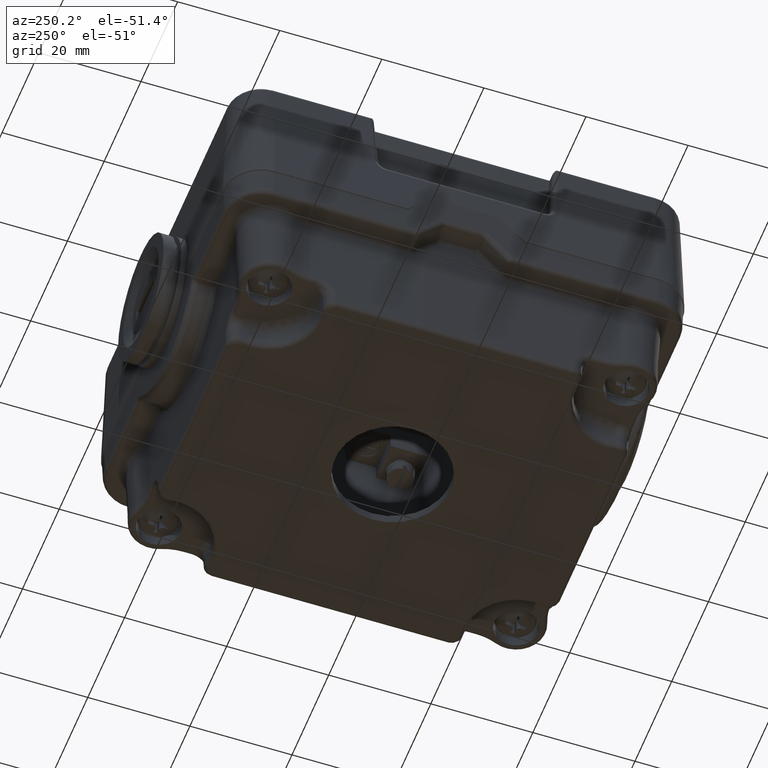
[diagram: clean part render]
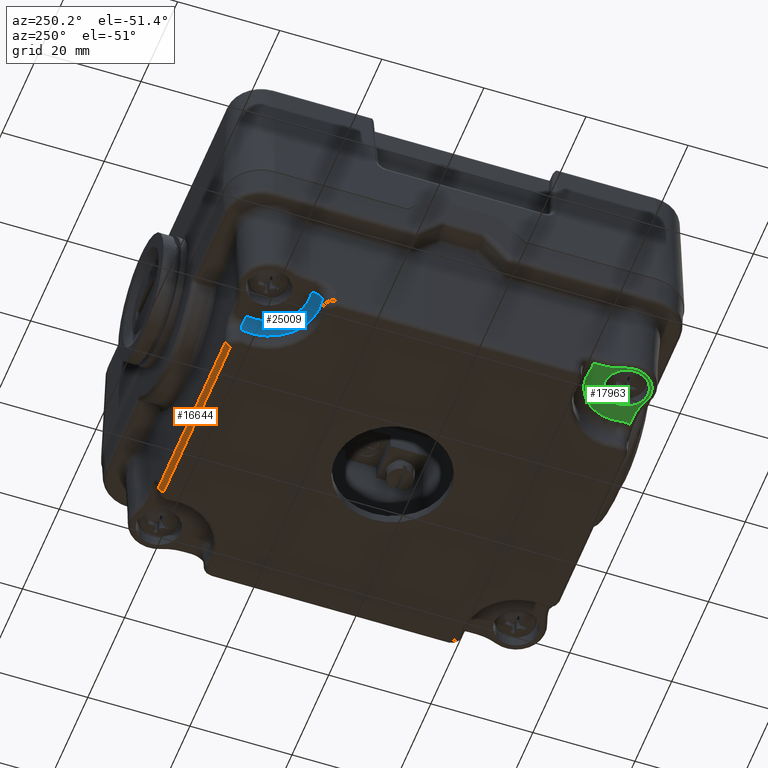
[diagram: same view with three faces highlighted in distinct colors, each labeled with its STEP entity id]
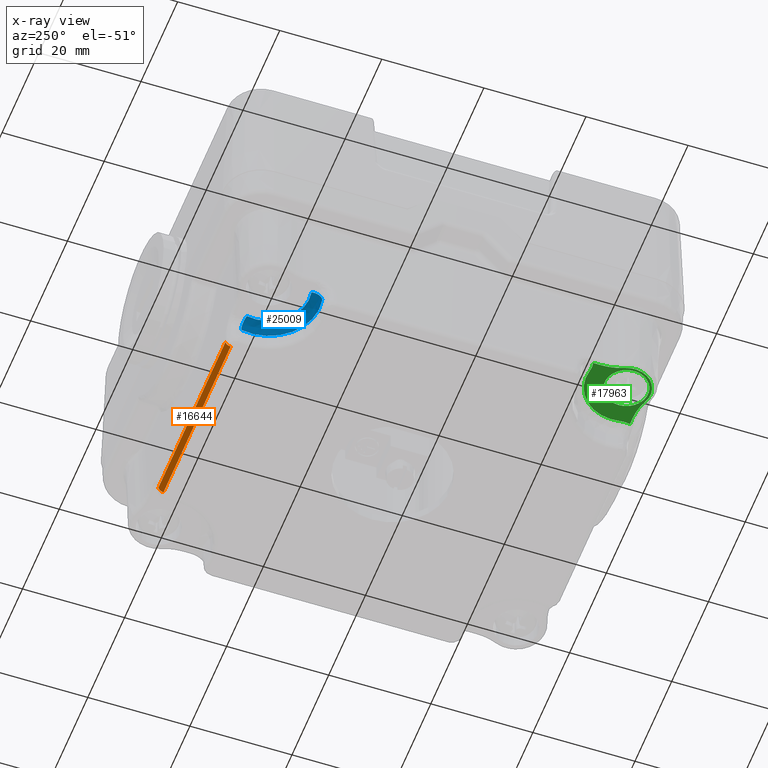
[diagram: x-ray of the same camera — body ghosted, the three highlighted faces saturated]
A machine part, auxiliary view with three faces highlighted in distinct colors.
The next image is the same camera in x-ray (body ghosted, the three faces saturated) — at least one of them is partly hidden behind the body in this view.
Their STEP definitions:

[orange] entity #16644 — the highlighted cylindrical surface (edge-blend (fillet) strip) has radius 1 mm, axis along (1, 0, 0).
#16526=CARTESIAN_POINT('',(46.551994362271294,-70.916268579466816,31.500000000000004));
#16527=VERTEX_POINT('',#16526);
#16528=CARTESIAN_POINT('',(46.551994362271294,-71.915659406485901,30.534899496702550));
#16529=VERTEX_POINT('',#16528);
#16530=CARTESIAN_POINT('',(46.551994362271294,-70.916268579466816,30.500000000000004));
#16531=DIRECTION('',(1.0,0.0,0.0));
#16532=DIRECTION('',(0.0,0.0,1.0));
#16533=AXIS2_PLACEMENT_3D('',#16530,#16531,#16532);
#16534=CIRCLE('',#16533,1.000000000000001);
#16535=EDGE_CURVE('',#16527,#16529,#16534,.T.);
#16613=CARTESIAN_POINT('',(40.165796040801212,-70.916268579466816,30.500000000000004));
#16614=DIRECTION('',(1.0,-2.037874E-016,0.0));
#16615=DIRECTION('',(0.0,-0.694658370458991,0.719339800338657));
#16616=AXIS2_PLACEMENT_3D('',#16613,#16614,#16615);
#16617=CYLINDRICAL_SURFACE('',#16616,1.0);
#16618=CARTESIAN_POINT('',(10.028379255852276,-70.916268579466816,31.500000000000004));
#16619=VERTEX_POINT('',#16618);
#16620=CARTESIAN_POINT('',(10.028379255852274,-71.915659406484394,30.534899496745975));
#16621=VERTEX_POINT('',#16620);
#16622=CARTESIAN_POINT('',(10.028379255852276,-70.916268579466816,30.500000000000004));
#16623=DIRECTION('',(1.0,0.0,0.0));
#16624=DIRECTION('',(0.0,0.0,1.0));
#16625=AXIS2_PLACEMENT_3D('',#16622,#16623,#16624);
#16626=CIRCLE('',#16625,1.000000000000001);
#16627=EDGE_CURVE('',#16619,#16621,#16626,.T.);
#16628=ORIENTED_EDGE('',*,*,#16627,.T.);
#16629=CARTESIAN_POINT('',(10.028379255852274,-71.915659406484394,30.534899496745975));
#16630=DIRECTION('',(1.0,-4.124320E-014,-1.188952E-012));
#16631=VECTOR('',#16630,36.523615106419022);
#16632=LINE('',#16629,#16631);
#16633=EDGE_CURVE('',#16621,#16529,#16632,.T.);
#16634=ORIENTED_EDGE('',*,*,#16633,.T.);
#16635=ORIENTED_EDGE('',*,*,#16535,.F.);
#16636=CARTESIAN_POINT('',(46.551994362271294,-70.916268579466816,31.500000000000004));
#16637=DIRECTION('',(-1.0,0.0,0.0));
#16638=VECTOR('',#16637,36.523615106419015);
#16639=LINE('',#16636,#16638);
#16640=EDGE_CURVE('',#16527,#16619,#16639,.T.);
#16641=ORIENTED_EDGE('',*,*,#16640,.T.);
#16642=EDGE_LOOP('',(#16628,#16634,#16635,#16641));
#16643=FACE_OUTER_BOUND('',#16642,.T.);
#16644=ADVANCED_FACE('',(#16643),#16617,.T.);

[blue] entity #25009 — the highlighted face is a freeform B-spline surface patch.
#16763=CARTESIAN_POINT('',(-3.700208150400697,-57.907331344865639,28.430201006599241));
#16764=VERTEX_POINT('',#16763);
#16772=CARTESIAN_POINT('',(7.980688618953256,-69.588227964486890,28.430201006627826));
#16773=VERTEX_POINT('',#16772);
#16774=CARTESIAN_POINT('',(-1.709813190715890,-67.597833129019023,28.430201006595006));
#16775=DIRECTION('',(0.0,0.0,1.0));
#16776=DIRECTION('',(0.707106776621830,0.707106785751265,0.0));
#16777=AXIS2_PLACEMENT_3D('',#16774,#16775,#16776);
#16778=CIRCLE('',#16777,9.892800256965304);
#16779=EDGE_CURVE('',#16773,#16764,#16778,.T.);
#18501=CARTESIAN_POINT('',(-3.298060646522059,-59.865239791562018,26.500000000000004));
#18502=VERTEX_POINT('',#18501);
#18513=CARTESIAN_POINT('',(-3.298060646522059,-59.865239791562018,28.500000000000007));
#18514=DIRECTION('',(-0.979550939313692,-0.201196315298426,0.0));
#18515=DIRECTION('',(-0.201073751939304,0.978954223348115,-0.034899496700380));
#18516=AXIS2_PLACEMENT_3D('',#18513,#18514,#18515);
#18517=CIRCLE('',#18516,2.000000000000152);
#18518=EDGE_CURVE('',#16764,#18502,#18517,.T.);
#18534=CARTESIAN_POINT('',(6.022780167100013,-69.186080485705219,26.500000000000004));
#18535=VERTEX_POINT('',#18534);
#18544=CARTESIAN_POINT('',(-1.709813190715890,-67.597833129019023,26.500000000000004));
#18545=DIRECTION('',(0.0,0.0,-1.0));
#18546=DIRECTION('',(0.707106776621830,0.707106785751265,0.0));
#18547=AXIS2_PLACEMENT_3D('',#18544,#18545,#18546);
#18548=CIRCLE('',#18547,7.894018602927113);
#18549=EDGE_CURVE('',#18502,#18535,#18548,.T.);
#24944=CARTESIAN_POINT('',(-7.605050139603664,-67.597833129019023,28.430201006627868));
#24945=CARTESIAN_POINT('',(-7.672454243997080,-67.597833129019023,26.500000000000007));
#24946=CARTESIAN_POINT('',(-9.603831793643003,-67.597833129019023,26.500000000000007));
#24947=CARTESIAN_POINT('',(-11.535209343288928,-67.597833129019023,26.500000000000007));
#24948=CARTESIAN_POINT('',(-11.602613447682343,-67.597833129019023,28.430201006627868));
#24949=CARTESIAN_POINT('',(-7.605050139603663,-73.493070077906793,28.430201006627868));
#24950=CARTESIAN_POINT('',(-7.672454243997080,-73.560474182300212,26.500000000000007));
#24951=CARTESIAN_POINT('',(-9.603831793643002,-75.491851731946127,26.500000000000007));
#24952=CARTESIAN_POINT('',(-11.535209343288924,-77.423229281592057,26.500000000000007));
#24953=CARTESIAN_POINT('',(-11.602613447682339,-77.490633385985475,28.430201006627868));
#24954=CARTESIAN_POINT('',(-1.709813190715890,-73.493070077906793,28.430201006627868));
#24955=CARTESIAN_POINT('',(-1.709813190715890,-73.560474182300212,26.500000000000007));
#24956=CARTESIAN_POINT('',(-1.709813190715890,-75.491851731946142,26.500000000000007));
#24957=CARTESIAN_POINT('',(-1.709813190715890,-77.423229281592057,26.500000000000007));
#24958=CARTESIAN_POINT('',(-1.709813190715890,-77.490633385985475,28.430201006627868));
#24959=CARTESIAN_POINT('',(4.185423758171884,-73.493070077906793,28.430201006627868));
#24960=CARTESIAN_POINT('',(4.252827862565301,-73.560474182300212,26.500000000000007));
#24961=CARTESIAN_POINT('',(6.184205412211223,-75.491851731946127,26.500000000000007));
#24962=CARTESIAN_POINT('',(8.115582961857145,-77.423229281592057,26.500000000000007));
#24963=CARTESIAN_POINT('',(8.182987066250561,-77.490633385985475,28.430201006627868));
#24964=CARTESIAN_POINT('',(4.185423758171885,-67.597833129019023,28.430201006627868));
#24965=CARTESIAN_POINT('',(4.252827862565302,-67.597833129019023,26.500000000000007));
#24966=CARTESIAN_POINT('',(6.184205412211224,-67.597833129019023,26.500000000000007));
#24967=CARTESIAN_POINT('',(8.115582961857147,-67.597833129019023,26.500000000000007));
#24968=CARTESIAN_POINT('',(8.182987066250563,-67.597833129019023,28.430201006627868));
#24969=CARTESIAN_POINT('',(4.185423758171884,-61.702596180131245,28.430201006627868));
#24970=CARTESIAN_POINT('',(4.252827862565301,-61.635192075737834,26.500000000000007));
#24971=CARTESIAN_POINT('',(6.184205412211223,-59.703814526091911,26.500000000000007));
#24972=CARTESIAN_POINT('',(8.115582961857145,-57.772436976445988,26.500000000000007));
#24973=CARTESIAN_POINT('',(8.182987066250561,-57.705032872052570,28.430201006627868));
#24974=CARTESIAN_POINT('',(-1.709813190715890,-61.702596180131252,28.430201006627868));
#24975=CARTESIAN_POINT('',(-1.709813190715890,-61.635192075737841,26.500000000000007));
#24976=CARTESIAN_POINT('',(-1.709813190715890,-59.703814526091911,26.500000000000007));
#24977=CARTESIAN_POINT('',(-1.709813190715890,-57.772436976445988,26.500000000000007));
#24978=CARTESIAN_POINT('',(-1.709813190715890,-57.705032872052570,28.430201006627868));
#24979=CARTESIAN_POINT('',(-7.605050139603663,-61.702596180131245,28.430201006627868));
#24980=CARTESIAN_POINT('',(-7.672454243997080,-61.635192075737834,26.500000000000007));
#24981=CARTESIAN_POINT('',(-9.603831793643002,-59.703814526091911,26.500000000000007));
#24982=CARTESIAN_POINT('',(-11.535209343288924,-57.772436976445988,26.500000000000007));
#24983=CARTESIAN_POINT('',(-11.602613447682339,-57.705032872052570,28.430201006627868));
#24984=CARTESIAN_POINT('',(-7.605050139603664,-67.597833129019023,28.430201006627868));
#24985=CARTESIAN_POINT('',(-7.672454243997080,-67.597833129019023,26.500000000000007));
#24986=CARTESIAN_POINT('',(-9.603831793643003,-67.597833129019023,26.500000000000007));
#24987=CARTESIAN_POINT('',(-11.535209343288928,-67.597833129019023,26.500000000000007));
#24988=CARTESIAN_POINT('',(-11.602613447682343,-67.597833129019023,28.430201006627868));
#24996=(BOUNDED_SURFACE()B_SPLINE_SURFACE(2,2,((#24944,#24949,#24954,#24959,#24964,#24969,#24974,#24979,#24984),(#24945,#24950,#24955,#24960,#24965,#24970,#24975,#24980,#24985),(#24946,#24951,#24956,#24961,#24966,#24971,#24976,#24981,#24986),(#24947,#24952,#24957,#24962,#24967,#24972,#24977,#24982,#24987),(#24948,#24953,#24958,#24963,#24968,#24973,#24978,#24983,#24988)),.UNSPECIFIED.,.F.,.T.,.U.)B_SPLINE_SURFACE_WITH_KNOTS((3,2,3),(3,2,2,2,3),(-3.106686068566348,-1.570796326794897,-0.034906585023445),(0.0,1.570796326794897,3.141592653589793,4.712388980384690,6.283185307179586),.UNSPECIFIED.)GEOMETRIC_REPRESENTATION_ITEM()RATIONAL_B_SPLINE_SURFACE(((1.0,0.707106781186548,1.0,0.707106781186548,1.0,0.707106781186548,1.0,0.707106781186548,1.0),(0.719339800332942,0.508650050792800,0.719339800332942,0.508650050792800,0.719339800332942,0.508650050792800,0.719339800332942,0.508650050792800,0.719339800332942),(1.0,0.707106781186548,1.0,0.707106781186548,1.0,0.707106781186548,1.0,0.707106781186548,1.0),(0.719339800332941,0.508650050792800,0.719339800332941,0.508650050792800,0.719339800332941,0.508650050792800,0.719339800332941,0.508650050792800,0.719339800332941),(1.0,0.707106781186548,1.0,0.707106781186548,1.0,0.707106781186548,1.0,0.707106781186548,1.0)))REPRESENTATION_ITEM('')SURFACE());
#24997=CARTESIAN_POINT('',(6.022780167100013,-69.186080485705219,28.500000000000007));
#24998=DIRECTION('',(-0.201196302742089,-0.979550941892720,0.0));
#24999=DIRECTION('',(0.0,0.0,-1.0));
#25000=AXIS2_PLACEMENT_3D('',#24997,#24998,#24999);
#25001=CIRCLE('',#25000,2.000000000000002);
#25002=EDGE_CURVE('',#18535,#16773,#25001,.T.);
#25003=ORIENTED_EDGE('',*,*,#25002,.T.);
#25004=ORIENTED_EDGE('',*,*,#16779,.T.);
#25005=ORIENTED_EDGE('',*,*,#18518,.T.);
#25006=ORIENTED_EDGE('',*,*,#18549,.T.);
#25007=EDGE_LOOP('',(#25003,#25004,#25005,#25006));
#25008=FACE_OUTER_BOUND('',#25007,.T.);
#25009=ADVANCED_FACE('',(#25008),#24996,.T.);

[green] entity #17963 — the highlighted planar face has unit normal (-0, 0, 1).
#17387=CARTESIAN_POINT('',(-5.202852637933524,-5.402621145309849,26.500000000000004));
#17388=VERTEX_POINT('',#17387);
#17396=CARTESIAN_POINT('',(-5.202852637934728,-3.846613919415876,26.500000000000004));
#17397=VERTEX_POINT('',#17396);
#17398=CARTESIAN_POINT('',(-5.202852637933524,-5.402621145309849,26.500000000000004));
#17399=DIRECTION('',(-7.740131E-013,1.0,0.0));
#17400=VECTOR('',#17399,1.556007225893973);
#17401=LINE('',#17398,#17400);
#17402=EDGE_CURVE('',#17388,#17397,#17401,.T.);
#17520=CARTESIAN_POINT('',(-6.087866487783033,0.577592643264848,26.500000000000004));
#17521=VERTEX_POINT('',#17520);
#17539=CARTESIAN_POINT('',(-16.703719673619940,-3.846613919415869,26.500000000000004));
#17540=DIRECTION('',(0.0,0.0,1.0));
#17541=DIRECTION('',(0.980573320989045,0.196152905062647,0.0));
#17542=AXIS2_PLACEMENT_3D('',#17539,#17540,#17541);
#17543=CIRCLE('',#17542,11.500867035685213);
#17544=EDGE_CURVE('',#17397,#17521,#17543,.T.);
#17554=CARTESIAN_POINT('',(0.114761036835425,6.780220167880213,26.500000000000004));
#17555=VERTEX_POINT('',#17554);
#17573=CARTESIAN_POINT('',(-1.709813190870624,2.402166870968713,26.500000000000004));
#17574=DIRECTION('',(0.0,0.0,-1.000000000000000));
#17575=DIRECTION('',(-0.707106781186371,0.707106781186724,0.0));
#17576=AXIS2_PLACEMENT_3D('',#17573,#17574,#17575);
#17577=CIRCLE('',#17576,4.743039298066881);
#17578=EDGE_CURVE('',#17521,#17555,#17577,.T.);
#17588=CARTESIAN_POINT('',(4.538968344450675,5.895206169014797,26.500000000000004));
#17589=VERTEX_POINT('',#17588);
#17605=CARTESIAN_POINT('',(4.538968344450677,17.396075141167419,26.500000000000004));
#17606=DIRECTION('',(0.0,0.0,1.0));
#17607=DIRECTION('',(-0.196152905062893,-0.980573320988996,0.0));
#17608=AXIS2_PLACEMENT_3D('',#17605,#17606,#17607);
#17609=CIRCLE('',#17608,11.500868972152620);
#17610=EDGE_CURVE('',#17555,#17589,#17609,.T.);
#17620=CARTESIAN_POINT('',(6.094974856051111,5.895206169013583,26.500000000000004));
#17621=VERTEX_POINT('',#17620);
#17631=CARTESIAN_POINT('',(4.538968344450675,5.895206169014797,26.500000000000004));
#17632=DIRECTION('',(1.0,-7.802923E-013,0.0));
#17633=VECTOR('',#17632,1.556006511600437);
#17634=LINE('',#17631,#17633);
#17635=EDGE_CURVE('',#17589,#17621,#17634,.T.);
#17899=CARTESIAN_POINT('',(6.022780166926194,3.990414227747832,26.500000000000004));
#17900=VERTEX_POINT('',#17899);
#17901=CARTESIAN_POINT('',(6.094927810722519,5.895219621360305,26.500000000000007));
#17902=CARTESIAN_POINT('',(6.081014985744173,5.846526897584970,26.500000000000007));
#17903=CARTESIAN_POINT('',(6.003135415626899,5.552803464081641,26.500000000000004));
#17904=CARTESIAN_POINT('',(5.934381486225322,5.085626317343244,26.500000000000007));
#17905=CARTESIAN_POINT('',(5.941729825668839,4.489434942300061,26.500000000000011));
#17906=CARTESIAN_POINT('',(5.989012856812719,4.154814865204330,26.500000000000004));
#17907=CARTESIAN_POINT('',(6.022780166926349,3.990414227747082,26.500000000000004));
#17908=B_SPLINE_CURVE_WITH_KNOTS('',3,(#17901,#17902,#17903,#17904,#17905,#17906,#17907),.UNSPECIFIED.,.F.,.U.,(4,1,1,1,4),(-0.191319569090218,-0.176224290078296,-0.100699594330455,-0.050349797165227,0.0),.UNSPECIFIED.);
#17909=EDGE_CURVE('',#17621,#17900,#17908,.T.);
#17922=CARTESIAN_POINT('',(-1.709813190870624,2.402166870968714,26.500000000000004));
#17923=DIRECTION('',(0.0,0.0,-1.0));
#17924=DIRECTION('',(-1.0,0.0,0.0));
#17925=AXIS2_PLACEMENT_3D('',#17922,#17923,#17924);
#17926=PLANE('',#17925);
#17927=ORIENTED_EDGE('',*,*,#17635,.F.);
#17928=ORIENTED_EDGE('',*,*,#17610,.F.);
#17929=ORIENTED_EDGE('',*,*,#17578,.F.);
#17930=ORIENTED_EDGE('',*,*,#17544,.F.);
#17931=ORIENTED_EDGE('',*,*,#17402,.F.);
#17932=CARTESIAN_POINT('',(-3.298060646574203,-5.330426466509368,26.500000000000004));
#17933=VERTEX_POINT('',#17932);
#17934=CARTESIAN_POINT('',(-3.298060646574151,-5.330426466509380,26.500000000000007));
#17935=CARTESIAN_POINT('',(-3.626861922998033,-5.262891841588476,26.500000000000007));
#17936=CARTESIAN_POINT('',(-4.275687556508436,-5.213055224241186,26.500000000000000));
#17937=CARTESIAN_POINT('',(-4.911052201999705,-5.318876517858853,26.499999999999996));
#17938=CARTESIAN_POINT('',(-5.202917672646598,-5.402393703056680,26.499999999999996));
#17939=B_SPLINE_CURVE_WITH_KNOTS('',3,(#17934,#17935,#17936,#17937,#17938),.UNSPECIFIED.,.F.,.U.,(4,1,4),(-0.704897165401199,-0.604197570343885,-0.513591523995995),.UNSPECIFIED.);
#17940=EDGE_CURVE('',#17933,#17388,#17939,.T.);
#17941=ORIENTED_EDGE('',*,*,#17940,.F.);
#17942=CARTESIAN_POINT('',(-1.709813190870624,2.402166870968714,26.500000000000004));
#17943=DIRECTION('',(0.0,0.0,-1.0));
#17944=DIRECTION('',(0.707106776632893,-0.707106785740202,0.0));
#17945=AXIS2_PLACEMENT_3D('',#17942,#17943,#17944);
#17946=CIRCLE('',#17945,7.894018602927113);
#17947=EDGE_CURVE('',#17900,#17933,#17946,.T.);
#17948=ORIENTED_EDGE('',*,*,#17947,.F.);
#17949=ORIENTED_EDGE('',*,*,#17909,.F.);
#17950=EDGE_LOOP('',(#17927,#17928,#17929,#17930,#17931,#17941,#17948,#17949));
#17951=FACE_OUTER_BOUND('',#17950,.T.);
#17952=CARTESIAN_POINT('',(2.540186809129374,2.402166870968711,26.500000000000004));
#17953=VERTEX_POINT('',#17952);
#17954=CARTESIAN_POINT('',(-1.709813190870626,2.402166870968711,26.500000000000004));
#17955=DIRECTION('',(0.0,0.0,-1.0));
#17956=DIRECTION('',(1.0,0.0,0.0));
#17957=AXIS2_PLACEMENT_3D('',#17954,#17955,#17956);
#17958=CIRCLE('',#17957,4.250000000000000);
#17959=EDGE_CURVE('',#17953,#17953,#17958,.T.);
#17960=ORIENTED_EDGE('',*,*,#17959,.T.);
#17961=EDGE_LOOP('',(#17960));
#17962=FACE_BOUND('',#17961,.T.);
#17963=ADVANCED_FACE('',(#17951,#17962),#17926,.F.);